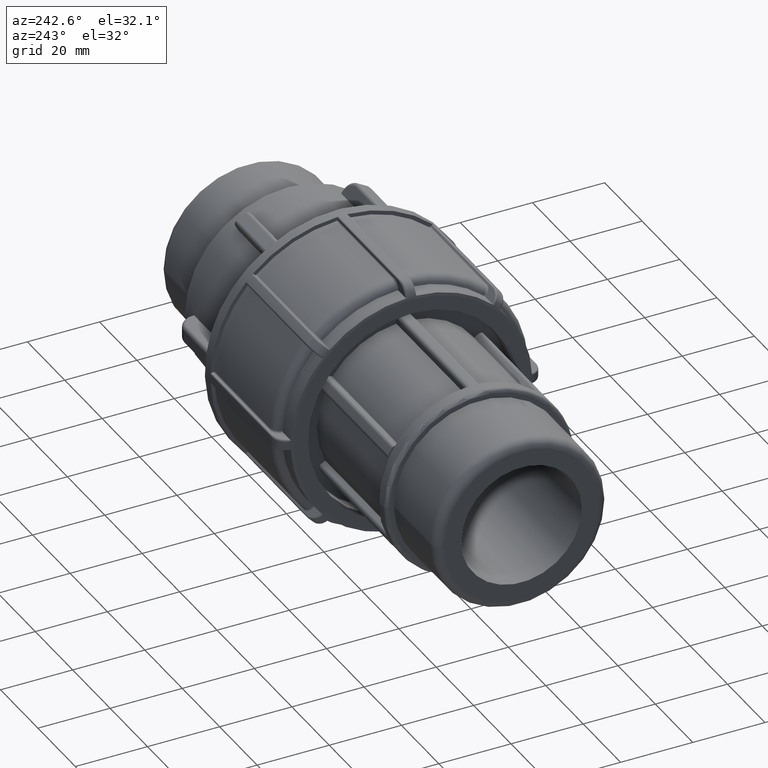
[diagram: clean part render]
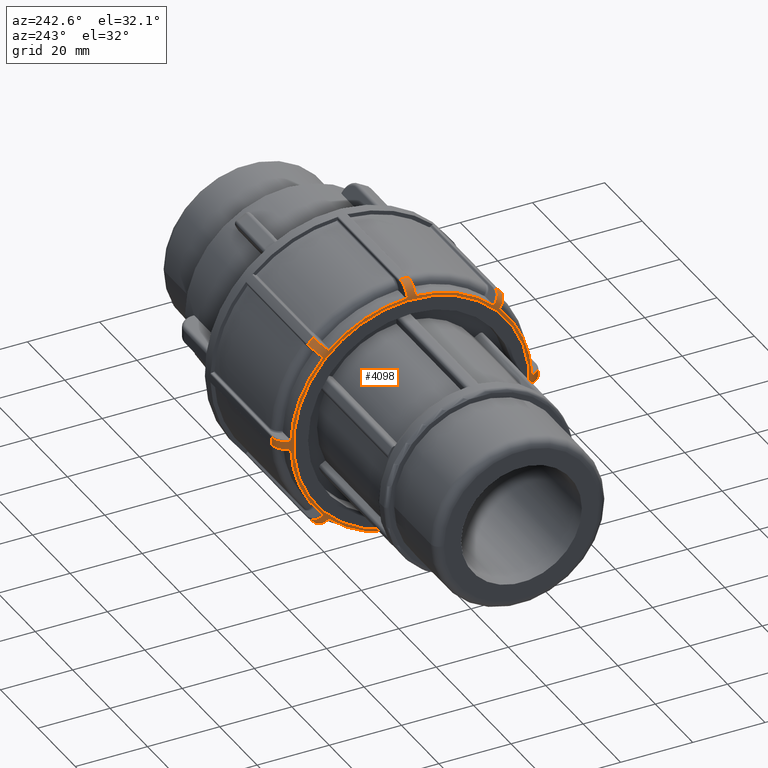
[diagram: same view with one face highlighted and labeled with its STEP entity id]
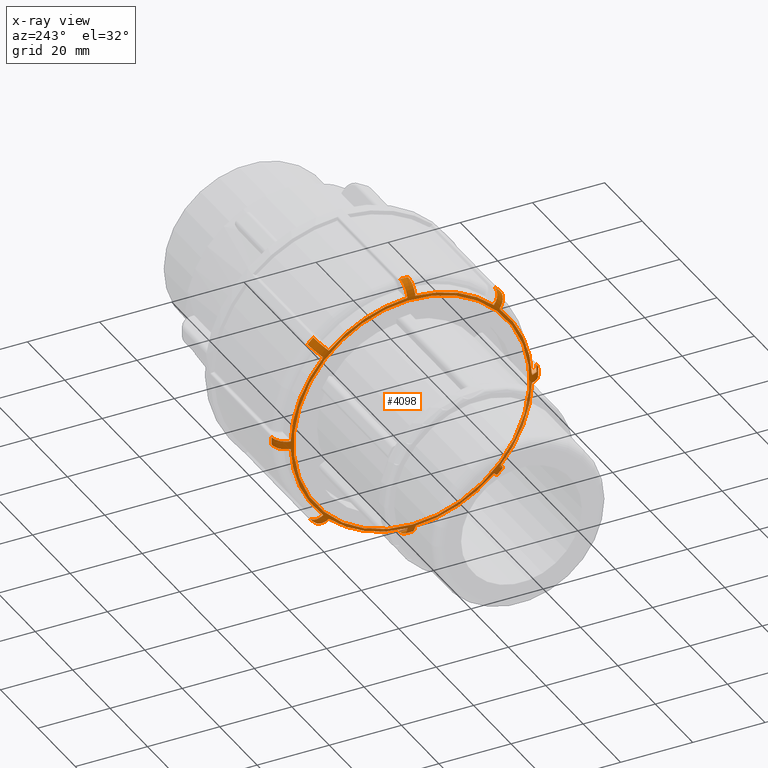
[diagram: x-ray of the same camera — body ghosted, the highlighted face saturated]
A machine part, auxiliary view. The second image highlights one B-rep face of the part: STEP entity #4098.
The next image is the same camera in x-ray: the body ghosted, the highlighted face saturated — about 23% of this face is hidden behind the body in this view.
In plain terms, the highlighted toroidal blend (fillet) surface has major radius 32.7 mm and minor (blend) radius 4 mm.
Its self-contained STEP definition (entity closure, byte-faithful):
#52=FACE_BOUND('',#511,.T.);
#163=TOROIDAL_SURFACE('',#4449,32.7,4.);
#255=FACE_OUTER_BOUND('',#510,.T.);
#510=EDGE_LOOP('',(#3056,#3057,#3058,#3059,#3060,#3061,#3062,#3063,#3064,
#3065,#3066,#3067,#3068,#3069,#3070,#3071,#3072,#3073,#3074,#3075,#3076,
#3077,#3078,#3079,#3080,#3081,#3082,#3083,#3084,#3085,#3086,#3087));
#511=EDGE_LOOP('',(#3088));
#709=B_SPLINE_CURVE_WITH_KNOTS('',3,(#6522,#6523,#6524,#6525,#6526),
 .UNSPECIFIED.,.F.,.F.,(4,1,4),(-2.78434521982972,-2.56966180735731,-2.28323280160941),
 .UNSPECIFIED.);
#710=B_SPLINE_CURVE_WITH_KNOTS('',3,(#6598,#6599,#6600,#6601,#6602),
 .UNSPECIFIED.,.F.,.F.,(4,1,4),(-2.28323280160942,-2.06841022246184,-1.78212038306316),
 .UNSPECIFIED.);
#711=B_SPLINE_CURVE_WITH_KNOTS('',3,(#6604,#6605,#6606,#6607,#6608),
 .UNSPECIFIED.,.F.,.F.,(4,1,4),(-2.78434521982972,-2.56966180735731,-2.28323280160941),
 .UNSPECIFIED.);
#712=B_SPLINE_CURVE_WITH_KNOTS('',3,(#6611,#6612,#6613,#6614,#6615),
 .UNSPECIFIED.,.F.,.F.,(4,1,4),(-2.28323280160942,-2.06841022246184,-1.78212038306316),
 .UNSPECIFIED.);
#713=B_SPLINE_CURVE_WITH_KNOTS('',3,(#6617,#6618,#6619,#6620,#6621),
 .UNSPECIFIED.,.F.,.F.,(4,1,4),(-2.78434521982972,-2.56966180735731,-2.28323280160941),
 .UNSPECIFIED.);
#714=B_SPLINE_CURVE_WITH_KNOTS('',3,(#6624,#6625,#6626,#6627,#6628),
 .UNSPECIFIED.,.F.,.F.,(4,1,4),(-2.28323280160942,-2.06841022246184,-1.78212038306316),
 .UNSPECIFIED.);
#715=B_SPLINE_CURVE_WITH_KNOTS('',3,(#6630,#6631,#6632,#6633,#6634),
 .UNSPECIFIED.,.F.,.F.,(4,1,4),(-2.78434521982946,-2.49805455592034,-2.28323280160941),
 .UNSPECIFIED.);
#716=B_SPLINE_CURVE_WITH_KNOTS('',3,(#6637,#6638,#6639,#6640,#6641),
 .UNSPECIFIED.,.F.,.F.,(4,1,4),(-2.28323280160941,-1.99680269607932,-1.78212038306288),
 .UNSPECIFIED.);
#717=B_SPLINE_CURVE_WITH_KNOTS('',3,(#6643,#6644,#6645,#6646,#6647),
 .UNSPECIFIED.,.F.,.F.,(4,1,4),(-2.78434521982972,-2.56966180735731,-2.28323280160941),
 .UNSPECIFIED.);
#718=B_SPLINE_CURVE_WITH_KNOTS('',3,(#6650,#6651,#6652,#6653,#6654),
 .UNSPECIFIED.,.F.,.F.,(4,1,4),(-2.28323280160941,-1.99680269607932,-1.78212038306288),
 .UNSPECIFIED.);
#719=B_SPLINE_CURVE_WITH_KNOTS('',3,(#6656,#6657,#6658,#6659,#6660),
 .UNSPECIFIED.,.F.,.F.,(4,1,4),(-2.78434521982946,-2.49805455592034,-2.28323280160941),
 .UNSPECIFIED.);
#720=B_SPLINE_CURVE_WITH_KNOTS('',3,(#6663,#6664,#6665,#6666,#6667),
 .UNSPECIFIED.,.F.,.F.,(4,1,4),(-2.28323280160941,-1.99680269607932,-1.78212038306288),
 .UNSPECIFIED.);
#721=B_SPLINE_CURVE_WITH_KNOTS('',3,(#6669,#6670,#6671,#6672,#6673),
 .UNSPECIFIED.,.F.,.F.,(4,1,4),(-2.78434521982946,-2.49805455592034,-2.28323280160941),
 .UNSPECIFIED.);
#722=B_SPLINE_CURVE_WITH_KNOTS('',3,(#6676,#6677,#6678,#6679,#6680),
 .UNSPECIFIED.,.F.,.F.,(4,1,4),(-2.28323280160941,-1.99680269607932,-1.78212038306288),
 .UNSPECIFIED.);
#723=B_SPLINE_CURVE_WITH_KNOTS('',3,(#6682,#6683,#6684,#6685,#6686),
 .UNSPECIFIED.,.F.,.F.,(4,1,4),(-2.78434521982946,-2.49805455592034,-2.28323280160941),
 .UNSPECIFIED.);
#724=B_SPLINE_CURVE_WITH_KNOTS('',3,(#6689,#6690,#6691,#6692,#6693),
 .UNSPECIFIED.,.F.,.F.,(4,1,4),(-2.28323280160941,-2.06841022246184,-1.78212038306316),
 .UNSPECIFIED.);
#1416=CIRCLE('',#4434,36.7);
#1418=CIRCLE('',#4436,36.7);
#1420=CIRCLE('',#4438,36.7);
#1422=CIRCLE('',#4440,36.7);
#1424=CIRCLE('',#4442,36.7);
#1426=CIRCLE('',#4444,36.7);
#1428=CIRCLE('',#4446,36.7);
#1430=CIRCLE('',#4448,36.7);
#1431=CIRCLE('',#4450,33.4621);
#1432=CIRCLE('',#4451,33.4621);
#1433=CIRCLE('',#4452,33.4621);
#1434=CIRCLE('',#4453,33.4621);
#1435=CIRCLE('',#4454,33.4621);
#1436=CIRCLE('',#4455,33.4621);
#1437=CIRCLE('',#4456,33.4621);
#1438=CIRCLE('',#4457,33.4621);
#1439=CIRCLE('',#4458,32.7);
#1712=VERTEX_POINT('',#6496);
#1715=VERTEX_POINT('',#6505);
#1719=VERTEX_POINT('',#6536);
#1722=VERTEX_POINT('',#6542);
#1723=VERTEX_POINT('',#6544);
#1726=VERTEX_POINT('',#6550);
#1727=VERTEX_POINT('',#6552);
#1730=VERTEX_POINT('',#6558);
#1731=VERTEX_POINT('',#6560);
#1734=VERTEX_POINT('',#6566);
#1735=VERTEX_POINT('',#6568);
#1738=VERTEX_POINT('',#6574);
#1739=VERTEX_POINT('',#6576);
#1742=VERTEX_POINT('',#6582);
#1743=VERTEX_POINT('',#6584);
#1746=VERTEX_POINT('',#6590);
#1747=VERTEX_POINT('',#6592);
#1748=VERTEX_POINT('',#6596);
#1749=VERTEX_POINT('',#6603);
#1750=VERTEX_POINT('',#6609);
#1751=VERTEX_POINT('',#6616);
#1752=VERTEX_POINT('',#6622);
#1753=VERTEX_POINT('',#6629);
#1754=VERTEX_POINT('',#6635);
#1755=VERTEX_POINT('',#6642);
#1756=VERTEX_POINT('',#6648);
#1757=VERTEX_POINT('',#6655);
#1758=VERTEX_POINT('',#6661);
#1759=VERTEX_POINT('',#6668);
#1760=VERTEX_POINT('',#6674);
#1761=VERTEX_POINT('',#6681);
#1762=VERTEX_POINT('',#6687);
#1763=VERTEX_POINT('',#6694);
#2193=EDGE_CURVE('',#1715,#1712,#709,.T.);
#2198=EDGE_CURVE('',#1719,#1712,#1416,.T.);
#2202=EDGE_CURVE('',#1723,#1722,#1418,.T.);
#2206=EDGE_CURVE('',#1727,#1726,#1420,.T.);
#2210=EDGE_CURVE('',#1731,#1730,#1422,.T.);
#2214=EDGE_CURVE('',#1735,#1734,#1424,.T.);
#2218=EDGE_CURVE('',#1739,#1738,#1426,.T.);
#2222=EDGE_CURVE('',#1743,#1742,#1428,.T.);
#2226=EDGE_CURVE('',#1747,#1746,#1430,.T.);
#2228=EDGE_CURVE('',#1748,#1715,#1431,.T.);
#2229=EDGE_CURVE('',#1747,#1748,#710,.T.);
#2230=EDGE_CURVE('',#1749,#1746,#711,.T.);
#2231=EDGE_CURVE('',#1750,#1749,#1432,.T.);
#2232=EDGE_CURVE('',#1743,#1750,#712,.T.);
#2233=EDGE_CURVE('',#1751,#1742,#713,.T.);
#2234=EDGE_CURVE('',#1752,#1751,#1433,.T.);
#2235=EDGE_CURVE('',#1739,#1752,#714,.T.);
#2236=EDGE_CURVE('',#1753,#1738,#715,.T.);
#2237=EDGE_CURVE('',#1754,#1753,#1434,.T.);
#2238=EDGE_CURVE('',#1735,#1754,#716,.T.);
#2239=EDGE_CURVE('',#1755,#1734,#717,.T.);
#2240=EDGE_CURVE('',#1756,#1755,#1435,.T.);
#2241=EDGE_CURVE('',#1731,#1756,#718,.T.);
#2242=EDGE_CURVE('',#1757,#1730,#719,.T.);
#2243=EDGE_CURVE('',#1758,#1757,#1436,.T.);
#2244=EDGE_CURVE('',#1727,#1758,#720,.T.);
#2245=EDGE_CURVE('',#1759,#1726,#721,.T.);
#2246=EDGE_CURVE('',#1760,#1759,#1437,.T.);
#2247=EDGE_CURVE('',#1723,#1760,#722,.T.);
#2248=EDGE_CURVE('',#1761,#1722,#723,.T.);
#2249=EDGE_CURVE('',#1762,#1761,#1438,.T.);
#2250=EDGE_CURVE('',#1719,#1762,#724,.T.);
#2251=EDGE_CURVE('',#1763,#1763,#1439,.T.);
#3056=ORIENTED_EDGE('',*,*,#2193,.F.);
#3057=ORIENTED_EDGE('',*,*,#2228,.F.);
#3058=ORIENTED_EDGE('',*,*,#2229,.F.);
#3059=ORIENTED_EDGE('',*,*,#2226,.T.);
#3060=ORIENTED_EDGE('',*,*,#2230,.F.);
#3061=ORIENTED_EDGE('',*,*,#2231,.F.);
#3062=ORIENTED_EDGE('',*,*,#2232,.F.);
#3063=ORIENTED_EDGE('',*,*,#2222,.T.);
#3064=ORIENTED_EDGE('',*,*,#2233,.F.);
#3065=ORIENTED_EDGE('',*,*,#2234,.F.);
#3066=ORIENTED_EDGE('',*,*,#2235,.F.);
#3067=ORIENTED_EDGE('',*,*,#2218,.T.);
#3068=ORIENTED_EDGE('',*,*,#2236,.F.);
#3069=ORIENTED_EDGE('',*,*,#2237,.F.);
#3070=ORIENTED_EDGE('',*,*,#2238,.F.);
#3071=ORIENTED_EDGE('',*,*,#2214,.T.);
#3072=ORIENTED_EDGE('',*,*,#2239,.F.);
#3073=ORIENTED_EDGE('',*,*,#2240,.F.);
#3074=ORIENTED_EDGE('',*,*,#2241,.F.);
#3075=ORIENTED_EDGE('',*,*,#2210,.T.);
#3076=ORIENTED_EDGE('',*,*,#2242,.F.);
#3077=ORIENTED_EDGE('',*,*,#2243,.F.);
#3078=ORIENTED_EDGE('',*,*,#2244,.F.);
#3079=ORIENTED_EDGE('',*,*,#2206,.T.);
#3080=ORIENTED_EDGE('',*,*,#2245,.F.);
#3081=ORIENTED_EDGE('',*,*,#2246,.F.);
#3082=ORIENTED_EDGE('',*,*,#2247,.F.);
#3083=ORIENTED_EDGE('',*,*,#2202,.T.);
#3084=ORIENTED_EDGE('',*,*,#2248,.F.);
#3085=ORIENTED_EDGE('',*,*,#2249,.F.);
#3086=ORIENTED_EDGE('',*,*,#2250,.F.);
#3087=ORIENTED_EDGE('',*,*,#2198,.T.);
#3088=ORIENTED_EDGE('',*,*,#2251,.T.);
#4098=ADVANCED_FACE('',(#255,#52),#163,.T.);
#4434=AXIS2_PLACEMENT_3D('',#6537,#5178,#5179);
#4436=AXIS2_PLACEMENT_3D('',#6545,#5184,#5185);
#4438=AXIS2_PLACEMENT_3D('',#6553,#5190,#5191);
#4440=AXIS2_PLACEMENT_3D('',#6561,#5196,#5197);
#4442=AXIS2_PLACEMENT_3D('',#6569,#5202,#5203);
#4444=AXIS2_PLACEMENT_3D('',#6577,#5208,#5209);
#4446=AXIS2_PLACEMENT_3D('',#6585,#5214,#5215);
#4448=AXIS2_PLACEMENT_3D('',#6593,#5220,#5221);
#4449=AXIS2_PLACEMENT_3D('',#6595,#5223,#5224);
#4450=AXIS2_PLACEMENT_3D('',#6597,#5225,#5226);
#4451=AXIS2_PLACEMENT_3D('',#6610,#5227,#5228);
#4452=AXIS2_PLACEMENT_3D('',#6623,#5229,#5230);
#4453=AXIS2_PLACEMENT_3D('',#6636,#5231,#5232);
#4454=AXIS2_PLACEMENT_3D('',#6649,#5233,#5234);
#4455=AXIS2_PLACEMENT_3D('',#6662,#5235,#5236);
#4456=AXIS2_PLACEMENT_3D('',#6675,#5237,#5238);
#4457=AXIS2_PLACEMENT_3D('',#6688,#5239,#5240);
#4458=AXIS2_PLACEMENT_3D('',#6695,#5241,#5242);
#5178=DIRECTION('center_axis',(-1.,0.,0.));
#5179=DIRECTION('ref_axis',(0.,0.707106781186547,-0.707106781186548));
#5184=DIRECTION('center_axis',(-1.,0.,0.));
#5185=DIRECTION('ref_axis',(0.,1.,-8.78327837346077E-17));
#5190=DIRECTION('center_axis',(-1.,0.,0.));
#5191=DIRECTION('ref_axis',(0.,0.707106781186548,0.707106781186547));
#5196=DIRECTION('center_axis',(-1.,0.,0.));
#5197=DIRECTION('ref_axis',(0.,-9.36750677027475E-17,1.));
#5202=DIRECTION('center_axis',(-1.,0.,0.));
#5203=DIRECTION('ref_axis',(0.,-0.707106781186548,0.707106781186547));
#5208=DIRECTION('center_axis',(-1.,0.,0.));
#5209=DIRECTION('ref_axis',(0.,-1.,-9.36750677027476E-17));
#5214=DIRECTION('center_axis',(-1.,0.,0.));
#5215=DIRECTION('ref_axis',(0.,-0.707106781186547,-0.707106781186548));
#5220=DIRECTION('center_axis',(-1.,0.,0.));
#5221=DIRECTION('ref_axis',(0.,-8.78327837346077E-17,-1.));
#5223=DIRECTION('center_axis',(-1.,0.,0.));
#5224=DIRECTION('ref_axis',(0.,0.,1.));
#5225=DIRECTION('center_axis',(1.,0.,0.));
#5226=DIRECTION('ref_axis',(0.,1.,0.));
#5227=DIRECTION('center_axis',(1.,0.,0.));
#5228=DIRECTION('ref_axis',(0.,1.,0.));
#5229=DIRECTION('center_axis',(1.,0.,0.));
#5230=DIRECTION('ref_axis',(0.,1.,0.));
#5231=DIRECTION('center_axis',(1.,0.,0.));
#5232=DIRECTION('ref_axis',(0.,1.,0.));
#5233=DIRECTION('center_axis',(1.,0.,0.));
#5234=DIRECTION('ref_axis',(0.,1.,0.));
#5235=DIRECTION('center_axis',(1.,0.,0.));
#5236=DIRECTION('ref_axis',(0.,1.,0.));
#5237=DIRECTION('center_axis',(1.,0.,0.));
#5238=DIRECTION('ref_axis',(0.,1.,0.));
#5239=DIRECTION('center_axis',(1.,0.,0.));
#5240=DIRECTION('ref_axis',(0.,1.,0.));
#5241=DIRECTION('center_axis',(1.,0.,0.));
#5242=DIRECTION('ref_axis',(0.,-9.36750677027476E-17,1.));
#6496=CARTESIAN_POINT('',(-84.2,25.152512705871,-26.7252896070557));
#6505=CARTESIAN_POINT('',(-88.1267293757043,22.8682579899164,-24.4285675575908));
#6522=CARTESIAN_POINT('Ctrl Pts',(-88.126729367515,22.8682579895366,-24.4285675571818));
#6523=CARTESIAN_POINT('Ctrl Pts',(-87.9766714280524,23.4135687101559,-24.9771173163107));
#6524=CARTESIAN_POINT('Ctrl Pts',(-87.0781295146087,24.6129717398319,-26.1831161253431));
#6525=CARTESIAN_POINT('Ctrl Pts',(-85.2512120588968,25.152512705871,-26.7252896070557));
#6526=CARTESIAN_POINT('Ctrl Pts',(-84.2,25.152512705871,-26.7252896070557));
#6536=CARTESIAN_POINT('',(-84.2,26.7252896070557,-25.152512705871));
#6537=CARTESIAN_POINT('Origin',(-84.2,0.,0.));
#6542=CARTESIAN_POINT('',(-84.2,36.6831458085256,-1.11212121212121));
#6544=CARTESIAN_POINT('',(-84.2,36.6831458085256,1.11212121212121));
#6545=CARTESIAN_POINT('Origin',(-84.2,0.,0.));
#6550=CARTESIAN_POINT('',(-84.2,26.7252896070557,25.152512705871));
#6552=CARTESIAN_POINT('',(-84.2,25.152512705871,26.7252896070557));
#6553=CARTESIAN_POINT('Origin',(-84.2,0.,0.));
#6558=CARTESIAN_POINT('',(-84.2,1.11212121212121,36.6831458085256));
#6560=CARTESIAN_POINT('',(-84.2,-1.11212121212122,36.6831458085256));
#6561=CARTESIAN_POINT('Origin',(-84.2,0.,0.));
#6566=CARTESIAN_POINT('',(-84.2,-25.152512705871,26.7252896070557));
#6568=CARTESIAN_POINT('',(-84.2,-26.7252896070557,25.152512705871));
#6569=CARTESIAN_POINT('Origin',(-84.2,0.,0.));
#6574=CARTESIAN_POINT('',(-84.2,-36.6831458085256,1.11212121212121));
#6576=CARTESIAN_POINT('',(-84.2,-36.6831458085256,-1.11212121212122));
#6577=CARTESIAN_POINT('Origin',(-84.2,0.,0.));
#6582=CARTESIAN_POINT('',(-84.2,-26.7252896070557,-25.152512705871));
#6584=CARTESIAN_POINT('',(-84.2,-25.152512705871,-26.7252896070557));
#6585=CARTESIAN_POINT('Origin',(-84.2,0.,0.));
#6590=CARTESIAN_POINT('',(-84.2,-1.11212121212121,-36.6831458085256));
#6592=CARTESIAN_POINT('',(-84.2,1.1121212121212,-36.6831458085256));
#6593=CARTESIAN_POINT('Origin',(-84.2,0.,0.));
#6595=CARTESIAN_POINT('Origin',(-84.2,0.,0.));
#6596=CARTESIAN_POINT('',(-88.1267293763893,1.10330547604234,-33.4439060697086));
#6597=CARTESIAN_POINT('Origin',(-88.1267293757019,0.,0.));
#6598=CARTESIAN_POINT('Ctrl Pts',(-84.2,1.1121212121212,-36.6831458085256));
#6599=CARTESIAN_POINT('Ctrl Pts',(-84.9884120713735,1.1121212121212,-36.6831458085256));
#6600=CARTESIAN_POINT('Ctrl Pts',(-86.8293524157521,1.11075446085993,-36.1235887897556));
#6601=CARTESIAN_POINT('Ctrl Pts',(-87.9266114294372,1.10635973025144,-34.4753608240683));
#6602=CARTESIAN_POINT('Ctrl Pts',(-88.1267293614509,1.10330547600404,-33.4439060618269));
#6603=CARTESIAN_POINT('',(-88.1267293757043,-1.1033054760528,-33.4439060732394));
#6604=CARTESIAN_POINT('Ctrl Pts',(-88.1267293675105,-1.10330547603219,-33.4439060726772));
#6605=CARTESIAN_POINT('Ctrl Pts',(-87.9766714234136,-1.10559582211397,-34.2173822308716));
#6606=CARTESIAN_POINT('Ctrl Pts',(-87.07812111077,-1.11025971916489,-35.9182496504931));
#6607=CARTESIAN_POINT('Ctrl Pts',(-85.2512120588964,-1.11212121212121,-36.6831458085256));
#6608=CARTESIAN_POINT('Ctrl Pts',(-84.2,-1.11212121212121,-36.6831458085256));
#6609=CARTESIAN_POINT('',(-88.1267293763893,-22.8682579874271,-24.4285675550867));
#6610=CARTESIAN_POINT('Origin',(-88.1267293757019,0.,0.));
#6611=CARTESIAN_POINT('Ctrl Pts',(-84.2,-25.152512705871,-26.7252896070557));
#6612=CARTESIAN_POINT('Ctrl Pts',(-84.9884120713739,-25.152512705871,-26.7252896070557));
#6613=CARTESIAN_POINT('Ctrl Pts',(-86.8293593608306,-24.7578194802525,-26.3286635323414));
#6614=CARTESIAN_POINT('Ctrl Pts',(-87.9266114333242,-23.5954469587196,-25.1600758941209));
#6615=CARTESIAN_POINT('Ctrl Pts',(-88.1267293614537,-22.8682579818838,-24.4285675494892));
#6616=CARTESIAN_POINT('',(-88.1267293757043,-24.4285675575908,-22.8682579899164));
#6617=CARTESIAN_POINT('Ctrl Pts',(-88.126729367515,-24.4285675571818,-22.8682579895366));
#6618=CARTESIAN_POINT('Ctrl Pts',(-87.9766714280524,-24.9771173163107,-23.4135687101559));
#6619=CARTESIAN_POINT('Ctrl Pts',(-87.0781295146084,-26.1831161253432,-24.612971739832));
#6620=CARTESIAN_POINT('Ctrl Pts',(-85.2512120588969,-26.7252896070557,-25.152512705871));
#6621=CARTESIAN_POINT('Ctrl Pts',(-84.2,-26.7252896070557,-25.152512705871));
#6622=CARTESIAN_POINT('',(-88.1267293763893,-33.4439060697086,-1.10330547604235));
#6623=CARTESIAN_POINT('Origin',(-88.1267293757019,0.,0.));
#6624=CARTESIAN_POINT('Ctrl Pts',(-84.2,-36.6831458085256,-1.11212121212122));
#6625=CARTESIAN_POINT('Ctrl Pts',(-84.9884120713736,-36.6831458085256,-1.11212121212122));
#6626=CARTESIAN_POINT('Ctrl Pts',(-86.8293524157521,-36.1235887897555,-1.11075446085994));
#6627=CARTESIAN_POINT('Ctrl Pts',(-87.9266114294372,-34.4753608240683,-1.10635973025145));
#6628=CARTESIAN_POINT('Ctrl Pts',(-88.1267293614508,-33.4439060618269,-1.10330547600405));
#6629=CARTESIAN_POINT('',(-88.1267293757043,-33.4439060732394,1.1033054760528));
#6630=CARTESIAN_POINT('Ctrl Pts',(-88.1267293611731,-33.4439060655713,1.10330547601554));
#6631=CARTESIAN_POINT('Ctrl Pts',(-87.9266111299095,-34.475363947748,1.10635973977995));
#6632=CARTESIAN_POINT('Ctrl Pts',(-86.8293493688508,-36.1235910767222,1.11075446611609));
#6633=CARTESIAN_POINT('Ctrl Pts',(-84.9884090441725,-36.6831458085256,1.11212121212121));
#6634=CARTESIAN_POINT('Ctrl Pts',(-84.2,-36.6831458085256,1.11212121212121));
#6635=CARTESIAN_POINT('',(-88.1267293763893,-24.4285675550867,22.8682579874271));
#6636=CARTESIAN_POINT('Origin',(-88.1267293757019,0.,0.));
#6637=CARTESIAN_POINT('Ctrl Pts',(-84.2,-26.7252896070557,25.152512705871));
#6638=CARTESIAN_POINT('Ctrl Pts',(-85.2512160951648,-26.7252896070556,25.152512705871));
#6639=CARTESIAN_POINT('Ctrl Pts',(-87.0781333628074,-26.1831138406687,24.6129694658335));
#6640=CARTESIAN_POINT('Ctrl Pts',(-87.976672080438,-24.9771144974284,23.4135659083025));
#6641=CARTESIAN_POINT('Ctrl Pts',(-88.1267293679704,-24.4285675546671,22.8682579870375));
#6642=CARTESIAN_POINT('',(-88.1267293757043,-22.8682579899164,24.4285675575908));
#6643=CARTESIAN_POINT('Ctrl Pts',(-88.126729367515,-22.8682579895366,24.4285675571818));
#6644=CARTESIAN_POINT('Ctrl Pts',(-87.9766714280524,-23.413568710156,24.9771173163107));
#6645=CARTESIAN_POINT('Ctrl Pts',(-87.0781295146088,-24.6129717398318,26.183116125343));
#6646=CARTESIAN_POINT('Ctrl Pts',(-85.2512120588964,-25.152512705871,26.7252896070557));
#6647=CARTESIAN_POINT('Ctrl Pts',(-84.2,-25.152512705871,26.7252896070557));
#6648=CARTESIAN_POINT('',(-88.1267293763893,-1.10330547604235,33.4439060697086));
#6649=CARTESIAN_POINT('Origin',(-88.1267293757019,0.,0.));
#6650=CARTESIAN_POINT('Ctrl Pts',(-84.2,-1.11212121212122,36.6831458085256));
#6651=CARTESIAN_POINT('Ctrl Pts',(-85.2512160951649,-1.11212121212122,36.6831458085256));
#6652=CARTESIAN_POINT('Ctrl Pts',(-87.0781249588001,-1.11025971161532,35.9182464269063));
#6653=CARTESIAN_POINT('Ctrl Pts',(-87.9766720757345,-1.10559581007255,34.2173782563456));
#6654=CARTESIAN_POINT('Ctrl Pts',(-88.1267293679658,-1.10330547602117,33.4439060691317));
#6655=CARTESIAN_POINT('',(-88.1267293757043,1.1033054760528,33.4439060732394));
#6656=CARTESIAN_POINT('Ctrl Pts',(-88.1267293611731,1.10330547601554,33.4439060655713));
#6657=CARTESIAN_POINT('Ctrl Pts',(-87.9266111299095,1.10635973977995,34.475363947748));
#6658=CARTESIAN_POINT('Ctrl Pts',(-86.829349368851,1.11075446611609,36.1235910767222));
#6659=CARTESIAN_POINT('Ctrl Pts',(-84.9884090441724,1.11212121212121,36.6831458085256));
#6660=CARTESIAN_POINT('Ctrl Pts',(-84.2,1.11212121212121,36.6831458085256));
#6661=CARTESIAN_POINT('',(-88.1267293763893,22.8682579874271,24.4285675550867));
#6662=CARTESIAN_POINT('Origin',(-88.1267293757019,0.,0.));
#6663=CARTESIAN_POINT('Ctrl Pts',(-84.2,25.152512705871,26.7252896070557));
#6664=CARTESIAN_POINT('Ctrl Pts',(-85.2512160951648,25.152512705871,26.7252896070556));
#6665=CARTESIAN_POINT('Ctrl Pts',(-87.0781333628074,24.6129694658336,26.1831138406687));
#6666=CARTESIAN_POINT('Ctrl Pts',(-87.9766720804379,23.4135659083026,24.9771144974284));
#6667=CARTESIAN_POINT('Ctrl Pts',(-88.1267293679704,22.8682579870375,24.4285675546671));
#6668=CARTESIAN_POINT('',(-88.1267293757043,24.4285675575908,22.8682579899164));
#6669=CARTESIAN_POINT('Ctrl Pts',(-88.1267293611759,24.428567552145,22.8682579845233));
#6670=CARTESIAN_POINT('Ctrl Pts',(-87.9266111337431,25.1600781095804,23.595449160704));
#6671=CARTESIAN_POINT('Ctrl Pts',(-86.8293563137944,26.3286651530791,24.7578210935575));
#6672=CARTESIAN_POINT('Ctrl Pts',(-84.9884090441726,26.7252896070557,25.152512705871));
#6673=CARTESIAN_POINT('Ctrl Pts',(-84.2,26.7252896070557,25.152512705871));
#6674=CARTESIAN_POINT('',(-88.1267293763893,33.4439060697086,1.10330547604234));
#6675=CARTESIAN_POINT('Origin',(-88.1267293757019,0.,0.));
#6676=CARTESIAN_POINT('Ctrl Pts',(-84.2,36.6831458085256,1.11212121212121));
#6677=CARTESIAN_POINT('Ctrl Pts',(-85.2512160951649,36.6831458085256,1.11212121212121));
#6678=CARTESIAN_POINT('Ctrl Pts',(-87.0781249588,35.9182464269063,1.11025971161531));
#6679=CARTESIAN_POINT('Ctrl Pts',(-87.9766720757345,34.2173782563456,1.10559581007254));
#6680=CARTESIAN_POINT('Ctrl Pts',(-88.1267293679658,33.4439060691317,1.10330547602116));
#6681=CARTESIAN_POINT('',(-88.1267293757043,33.4439060732394,-1.1033054760528));
#6682=CARTESIAN_POINT('Ctrl Pts',(-88.1267293611731,33.4439060655713,-1.10330547601554));
#6683=CARTESIAN_POINT('Ctrl Pts',(-87.9266111299096,34.4753639477479,-1.10635973977995));
#6684=CARTESIAN_POINT('Ctrl Pts',(-86.8293493688508,36.1235910767222,-1.11075446611609));
#6685=CARTESIAN_POINT('Ctrl Pts',(-84.9884090441725,36.6831458085256,-1.11212121212121));
#6686=CARTESIAN_POINT('Ctrl Pts',(-84.2,36.6831458085256,-1.11212121212121));
#6687=CARTESIAN_POINT('',(-88.1267293763893,24.4285675550867,-22.8682579874271));
#6688=CARTESIAN_POINT('Origin',(-88.1267293757019,0.,0.));
#6689=CARTESIAN_POINT('Ctrl Pts',(-84.2,26.7252896070557,-25.152512705871));
#6690=CARTESIAN_POINT('Ctrl Pts',(-84.9884120713739,26.7252896070557,-25.152512705871));
#6691=CARTESIAN_POINT('Ctrl Pts',(-86.8293593608306,26.3286635323414,-24.7578194802525));
#6692=CARTESIAN_POINT('Ctrl Pts',(-87.9266114333241,25.160075894121,-23.5954469587197));
#6693=CARTESIAN_POINT('Ctrl Pts',(-88.1267293614537,24.4285675494892,-22.8682579818838));
#6694=CARTESIAN_POINT('',(-88.2,24.1371125632937,22.06104705373));
#6695=CARTESIAN_POINT('Origin',(-88.2,0.,0.));